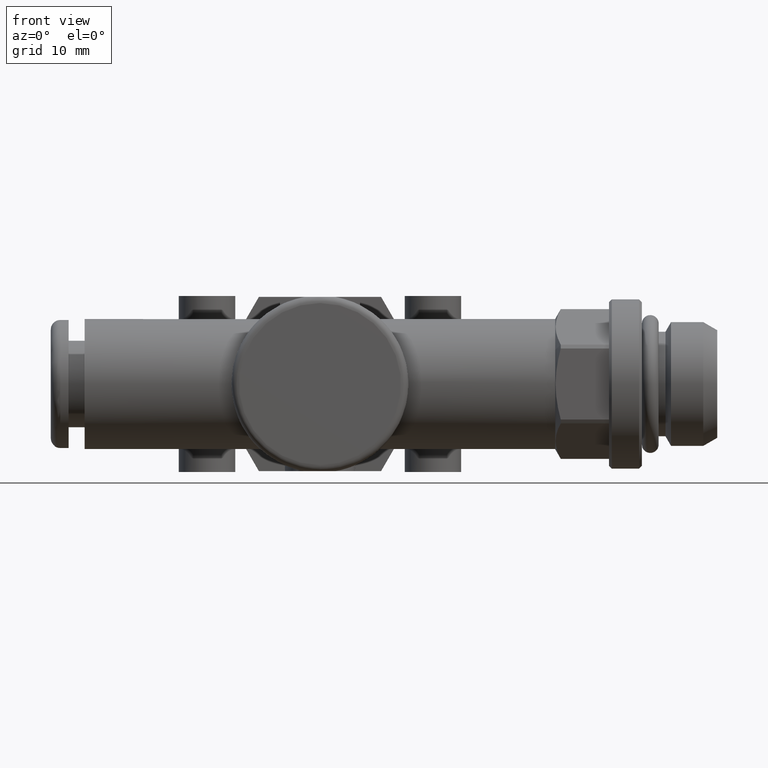
[diagram: clean part render]
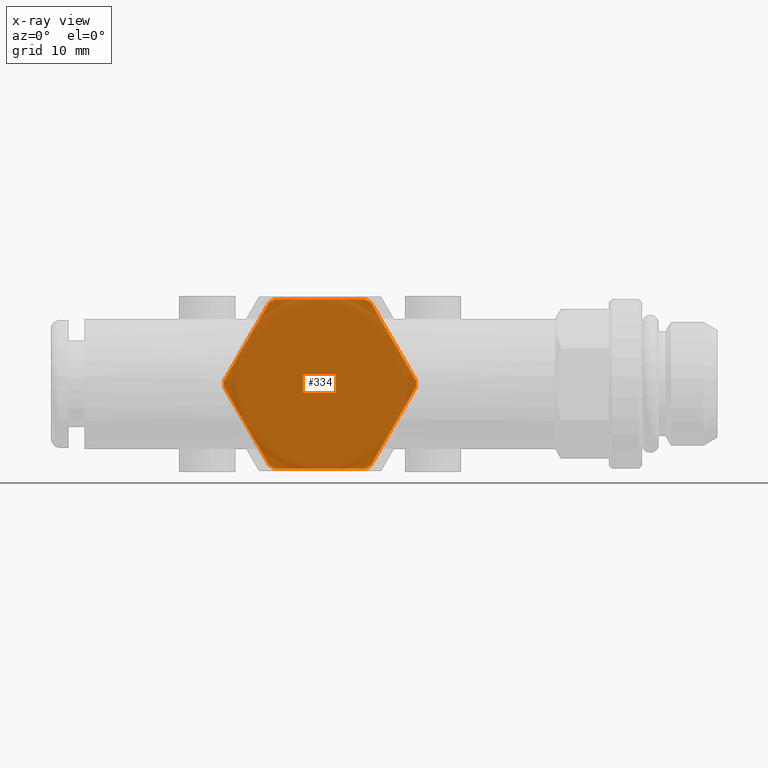
[diagram: x-ray — body ghosted, one internal face saturated and labeled with its STEP entity id]
A machine part, front view, then the same camera in x-ray: the body is ghosted and one INTERNAL B-rep face — a face not visible from any outside direction — is saturated and labeled: STEP entity #334.
In plain terms, the highlighted planar face has unit normal (0, 1, 0).
Its self-contained STEP definition (entity closure, byte-faithful):
#334 = ADVANCED_FACE( '', ( #735 ), #736, .F. );
#735 = FACE_OUTER_BOUND( '', #1272, .T. );
#736 = PLANE( '', #1273 );
#1272 = EDGE_LOOP( '', ( #1977, #1978, #1979, #1980, #1981, #1982, #1983, #1984, #1985, #1986, #1987, #1988 ) );
#1273 = AXIS2_PLACEMENT_3D( '', #1989, #1990, #1991 );
#1977 = ORIENTED_EDGE( '', *, *, #3021, .F. );
#1978 = ORIENTED_EDGE( '', *, *, #2904, .T. );
#1979 = ORIENTED_EDGE( '', *, *, #3022, .F. );
#1980 = ORIENTED_EDGE( '', *, *, #3023, .T. );
#1981 = ORIENTED_EDGE( '', *, *, #3024, .F. );
#1982 = ORIENTED_EDGE( '', *, *, #3025, .T. );
#1983 = ORIENTED_EDGE( '', *, *, #2889, .F. );
#1984 = ORIENTED_EDGE( '', *, *, #3026, .T. );
#1985 = ORIENTED_EDGE( '', *, *, #3027, .F. );
#1986 = ORIENTED_EDGE( '', *, *, #2982, .T. );
#1987 = ORIENTED_EDGE( '', *, *, #3028, .F. );
#1988 = ORIENTED_EDGE( '', *, *, #2899, .T. );
#1989 = CARTESIAN_POINT( '', ( 0.000000000000000, 0.000000000000000, 0.000000000000000 ) );
#1990 = DIRECTION( '', ( 1.00000000000000, 0.000000000000000, 0.000000000000000 ) );
#1991 = DIRECTION( '', ( 0.000000000000000, 0.000000000000000, -1.00000000000000 ) );
#2889 = EDGE_CURVE( '', #3370, #3371, #3372, .T. );
#2899 = EDGE_CURVE( '', #3389, #3387, #3390, .T. );
#2904 = EDGE_CURVE( '', #3398, #3396, #3399, .T. );
#2982 = EDGE_CURVE( '', #3527, #3525, #3528, .T. );
#3021 = EDGE_CURVE( '', #3398, #3387, #3588, .T. );
#3022 = EDGE_CURVE( '', #3589, #3396, #3590, .T. );
#3023 = EDGE_CURVE( '', #3589, #3591, #3592, .T. );
#3024 = EDGE_CURVE( '', #3593, #3591, #3594, .T. );
#3025 = EDGE_CURVE( '', #3593, #3371, #3595, .T. );
#3026 = EDGE_CURVE( '', #3370, #3596, #3597, .T. );
#3027 = EDGE_CURVE( '', #3527, #3596, #3598, .T. );
#3028 = EDGE_CURVE( '', #3389, #3525, #3599, .T. );
#3370 = VERTEX_POINT( '', #4066 );
#3371 = VERTEX_POINT( '', #4067 );
#3372 = CIRCLE( '', #4068, 10.2000000000000 );
#3387 = VERTEX_POINT( '', #4086 );
#3389 = VERTEX_POINT( '', #4089 );
#3390 = LINE( '', #4090, #4091 );
#3396 = VERTEX_POINT( '', #4099 );
#3398 = VERTEX_POINT( '', #4102 );
#3399 = LINE( '', #4103, #4104 );
#3525 = VERTEX_POINT( '', #4423 );
#3527 = VERTEX_POINT( '', #4426 );
#3528 = LINE( '', #4427, #4428 );
#3588 = CIRCLE( '', #4577, 10.2000000000000 );
#3589 = VERTEX_POINT( '', #4578 );
#3590 = CIRCLE( '', #4579, 10.2000000000000 );
#3591 = VERTEX_POINT( '', #4580 );
#3592 = LINE( '', #4581, #4582 );
#3593 = VERTEX_POINT( '', #4583 );
#3594 = CIRCLE( '', #4584, 10.2000000000000 );
#3595 = LINE( '', #4585, #4586 );
#3596 = VERTEX_POINT( '', #4587 );
#3597 = LINE( '', #4588, #4589 );
#3598 = CIRCLE( '', #4590, 10.2000000000000 );
#3599 = CIRCLE( '', #4591, 10.2000000000000 );
#4066 = CARTESIAN_POINT( '', ( 0.000000000000000, 4.80000000000000, -9.00000000000000 ) );
#4067 = CARTESIAN_POINT( '', ( 0.000000000000000, 5.39422863405995, -8.65692193816530 ) );
#4068 = AXIS2_PLACEMENT_3D( '', #5470, #5471, #5472 );
#4086 = CARTESIAN_POINT( '', ( 0.000000000000000, -5.39422863405995, 8.65692193816530 ) );
#4089 = CARTESIAN_POINT( '', ( 0.000000000000000, -10.1942286340599, 0.343078061834699 ) );
#4090 = CARTESIAN_POINT( '', ( 0.000000000000000, -7.79422863405995, 4.50000000000000 ) );
#4091 = VECTOR( '', #5486, 1000.00000000000 );
#4099 = CARTESIAN_POINT( '', ( 0.000000000000000, 4.80000000000000, 9.00000000000000 ) );
#4102 = CARTESIAN_POINT( '', ( 0.000000000000000, -4.80000000000000, 9.00000000000000 ) );
#4103 = CARTESIAN_POINT( '', ( 0.000000000000000, 0.000000000000000, 9.00000000000000 ) );
#4104 = VECTOR( '', #5490, 1000.00000000000 );
#4423 = CARTESIAN_POINT( '', ( 0.000000000000000, -10.1942286340599, -0.343078061834699 ) );
#4426 = CARTESIAN_POINT( '', ( 0.000000000000000, -5.39422863405995, -8.65692193816530 ) );
#4427 = CARTESIAN_POINT( '', ( 0.000000000000000, -7.79422863405995, -4.50000000000000 ) );
#4428 = VECTOR( '', #5588, 1000.00000000000 );
#4577 = AXIS2_PLACEMENT_3D( '', #5631, #5632, #5633 );
#4578 = CARTESIAN_POINT( '', ( 0.000000000000000, 5.39422863405995, 8.65692193816530 ) );
#4579 = AXIS2_PLACEMENT_3D( '', #5634, #5635, #5636 );
#4580 = CARTESIAN_POINT( '', ( 0.000000000000000, 10.1942286340599, 0.343078061834699 ) );
#4581 = CARTESIAN_POINT( '', ( 0.000000000000000, 7.79422863405995, 4.50000000000000 ) );
#4582 = VECTOR( '', #5637, 1000.00000000000 );
#4583 = CARTESIAN_POINT( '', ( 0.000000000000000, 10.1942286340599, -0.343078061834699 ) );
#4584 = AXIS2_PLACEMENT_3D( '', #5638, #5639, #5640 );
#4585 = CARTESIAN_POINT( '', ( 0.000000000000000, 7.79422863405995, -4.50000000000000 ) );
#4586 = VECTOR( '', #5641, 1000.00000000000 );
#4587 = CARTESIAN_POINT( '', ( 0.000000000000000, -4.80000000000000, -9.00000000000000 ) );
#4588 = CARTESIAN_POINT( '', ( 0.000000000000000, 0.000000000000000, -9.00000000000000 ) );
#4589 = VECTOR( '', #5642, 1000.00000000000 );
#4590 = AXIS2_PLACEMENT_3D( '', #5643, #5644, #5645 );
#4591 = AXIS2_PLACEMENT_3D( '', #5646, #5647, #5648 );
#5470 = CARTESIAN_POINT( '', ( 0.000000000000000, 0.000000000000000, 0.000000000000000 ) );
#5471 = DIRECTION( '', ( 1.00000000000000, 0.000000000000000, 0.000000000000000 ) );
#5472 = DIRECTION( '', ( 0.000000000000000, 0.000000000000000, -1.00000000000000 ) );
#5486 = DIRECTION( '', ( -0.000000000000000, 0.500000000000000, 0.866025403784439 ) );
#5490 = DIRECTION( '', ( -0.000000000000000, 1.00000000000000, 0.000000000000000 ) );
#5588 = DIRECTION( '', ( 0.000000000000000, -0.500000000000000, 0.866025403784439 ) );
#5631 = CARTESIAN_POINT( '', ( 0.000000000000000, 0.000000000000000, 0.000000000000000 ) );
#5632 = DIRECTION( '', ( 1.00000000000000, 0.000000000000000, 0.000000000000000 ) );
#5633 = DIRECTION( '', ( 0.000000000000000, 0.000000000000000, -1.00000000000000 ) );
#5634 = CARTESIAN_POINT( '', ( 0.000000000000000, 0.000000000000000, 0.000000000000000 ) );
#5635 = DIRECTION( '', ( 1.00000000000000, 0.000000000000000, 0.000000000000000 ) );
#5636 = DIRECTION( '', ( 0.000000000000000, 0.000000000000000, -1.00000000000000 ) );
#5637 = DIRECTION( '', ( 0.000000000000000, 0.500000000000000, -0.866025403784439 ) );
#5638 = CARTESIAN_POINT( '', ( 0.000000000000000, 0.000000000000000, 0.000000000000000 ) );
#5639 = DIRECTION( '', ( 1.00000000000000, 0.000000000000000, 0.000000000000000 ) );
#5640 = DIRECTION( '', ( 0.000000000000000, 0.000000000000000, -1.00000000000000 ) );
#5641 = DIRECTION( '', ( 0.000000000000000, -0.500000000000000, -0.866025403784439 ) );
#5642 = DIRECTION( '', ( 0.000000000000000, -1.00000000000000, 0.000000000000000 ) );
#5643 = CARTESIAN_POINT( '', ( 0.000000000000000, 0.000000000000000, 0.000000000000000 ) );
#5644 = DIRECTION( '', ( 1.00000000000000, 0.000000000000000, 0.000000000000000 ) );
#5645 = DIRECTION( '', ( 0.000000000000000, 0.000000000000000, -1.00000000000000 ) );
#5646 = CARTESIAN_POINT( '', ( 0.000000000000000, 0.000000000000000, 0.000000000000000 ) );
#5647 = DIRECTION( '', ( 1.00000000000000, 0.000000000000000, 0.000000000000000 ) );
#5648 = DIRECTION( '', ( 0.000000000000000, 0.000000000000000, -1.00000000000000 ) );